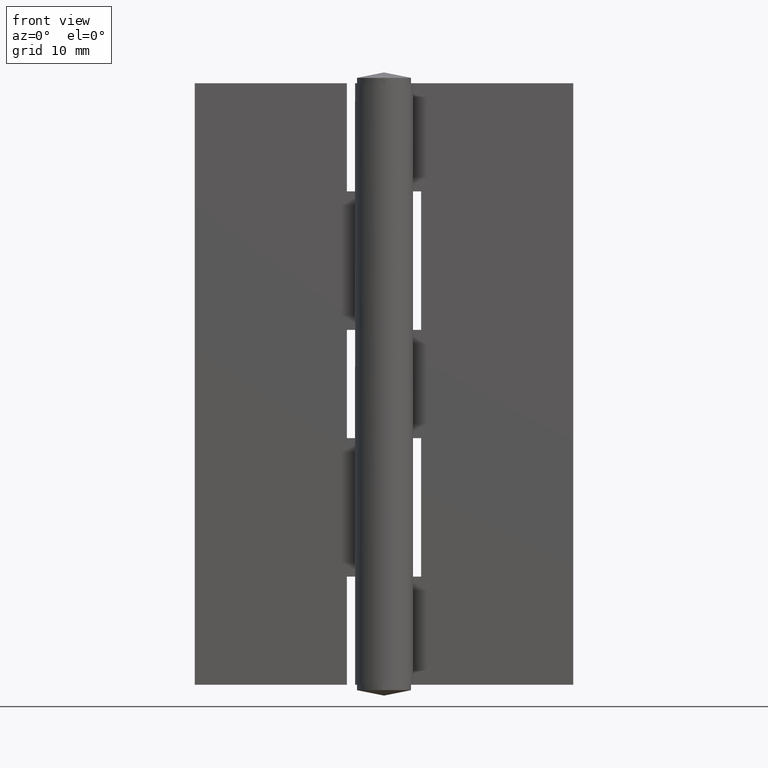
[diagram: clean part render]
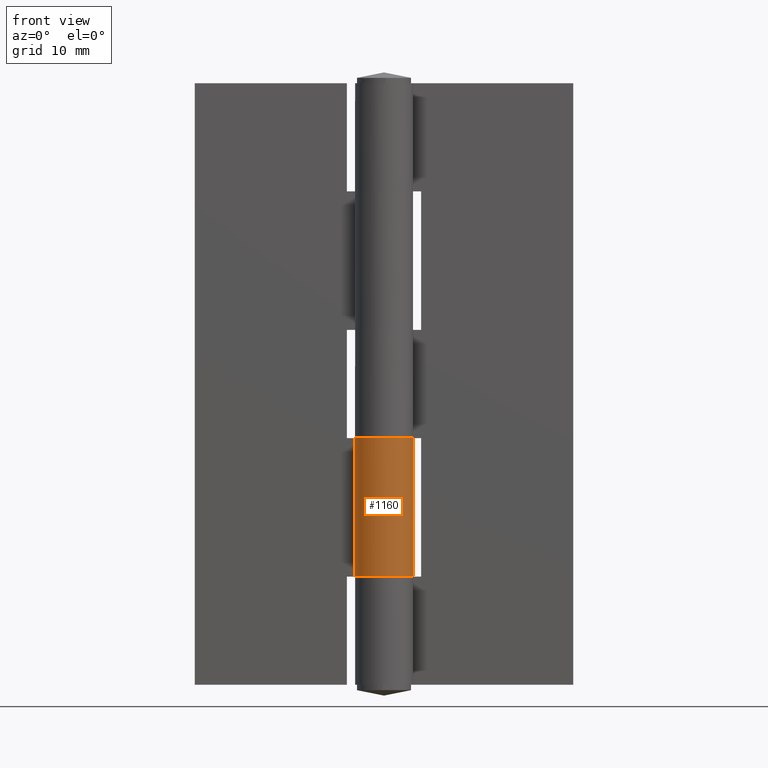
[diagram: same view with one face highlighted and labeled with its STEP entity id]
A machine part, front view. The second image highlights one B-rep face of the part: STEP entity #1160.
In plain terms, the highlighted face is a freeform B-spline surface patch.
Its self-contained STEP definition (entity closure, byte-faithful):
#437=CARTESIAN_POINT('',(0.002932575507883,4.299999000000000,16.0));
#438=VERTEX_POINT('',#437);
#439=CARTESIAN_POINT('',(-3.462297661957860,2.549999000000000,16.0));
#440=VERTEX_POINT('',#439);
#441=CARTESIAN_POINT('',(0.002932575507883,4.299999000000000,16.0));
#442=CARTESIAN_POINT('',(0.481933491687181,4.300013080212727,16.000000000000060));
#443=CARTESIAN_POINT('',(1.200059040545046,4.177845728719395,15.999999999999901));
#444=CARTESIAN_POINT('',(2.009770240784722,3.817724116576090,16.000000000000082));
#445=CARTESIAN_POINT('',(2.607046226951480,3.443843536100312,15.999999999999980));
#446=CARTESIAN_POINT('',(3.160861212709031,2.956948042687175,15.999999999999851));
#447=CARTESIAN_POINT('',(3.643783330239410,2.323168584797108,16.000000000000110));
#448=CARTESIAN_POINT('',(4.045111250741846,1.550382764543653,16.000000000000309));
#449=CARTESIAN_POINT('',(4.290746802694030,0.662960948063668,15.999999999999471));
#450=CARTESIAN_POINT('',(4.323113340937640,-0.420729384003662,16.000000000000199));
#451=CARTESIAN_POINT('',(4.106687007827798,-1.409386471307509,16.000000000000551));
#452=CARTESIAN_POINT('',(3.636378745814959,-2.368889054098237,15.999999999999570));
#453=CARTESIAN_POINT('',(3.078638550019641,-3.043767597170633,16.000000000000139));
#454=CARTESIAN_POINT('',(2.449515975493235,-3.554127620102255,16.000000000000121));
#455=CARTESIAN_POINT('',(1.711076645934413,-3.987364625944747,16.000000000000249));
#456=CARTESIAN_POINT('',(0.829683819228685,-4.260524236631307,15.999999999999980));
#457=CARTESIAN_POINT('',(-0.040031050454243,-4.317516782882353,15.999999999999920));
#458=CARTESIAN_POINT('',(-0.801987783248797,-4.248027822698567,15.999999999999860));
#459=CARTESIAN_POINT('',(-1.484324433030123,-4.060249870643527,16.000000000000231));
#460=CARTESIAN_POINT('',(-2.215196665440546,-3.710745901405451,16.000000000000519));
#461=CARTESIAN_POINT('',(-2.766994543508090,-3.318155866478220,15.999999999998410));
#462=CARTESIAN_POINT('',(-3.297175917094900,-2.787916705460616,16.000000000003158));
#463=CARTESIAN_POINT('',(-3.739260192487009,-2.180009512348315,15.999999999998041));
#464=CARTESIAN_POINT('',(-4.103386489059988,-1.386740610956285,16.000000000000622));
#465=CARTESIAN_POINT('',(-4.318348643137973,-0.432406220462712,15.999999999999799));
#466=CARTESIAN_POINT('',(-4.305682497805897,0.503407646580875,16.000000000000050));
#467=CARTESIAN_POINT('',(-4.056107463339091,1.556181259790487,16.0));
#468=CARTESIAN_POINT('',(-3.728781612544478,2.188567887070498,16.0));
#469=CARTESIAN_POINT('',(-3.462297661957860,2.549999000000000,16.0));
#470=B_SPLINE_CURVE_WITH_KNOTS('',3,(#441,#442,#443,#444,#445,#446,#447,#448,#449,#450,#451,#452,#453,#454,#455,#456,#457,#458,#459,#460,#461,#462,#463,#464,#465,#466,#467,#468,#469),.UNSPECIFIED.,.F.,.U.,(4,1,1,1,1,1,1,1,1,1,1,1,1,1,1,1,1,1,1,1,1,1,1,1,1,1,4),(0.000000511278881,1.436850530364449,2.155317894391565,2.649252435947265,3.547306386515242,4.355558217031408,5.029134985236766,6.151609582738658,7.094588374341475,8.262068314640825,9.160130367321768,10.282728902750589,10.866453134538830,11.584830473116760,12.842118105206810,13.605463042413060,14.189210483685040,15.132186546543860,15.715931242300170,16.613982865399549,17.152819115894381,17.960989465054912,18.859052699926352,19.757127776391901,20.879716277419892,21.643061214648029,22.990119390792589),.UNSPECIFIED.);
#471=EDGE_CURVE('',#438,#440,#470,.T.);
#833=CARTESIAN_POINT('',(-3.462297661957860,2.549999000000000,36.500000000000000));
#834=VERTEX_POINT('',#833);
#840=CARTESIAN_POINT('',(0.002932575507883,4.299999000000000,36.500000000000000));
#841=VERTEX_POINT('',#840);
#842=CARTESIAN_POINT('',(-3.462297661957860,2.549999000000000,36.500000000000000));
#843=CARTESIAN_POINT('',(-3.657627018110305,2.284899268811062,36.500000000000057));
#844=CARTESIAN_POINT('',(-3.919504879294518,1.827219718519073,36.499999999999957));
#845=CARTESIAN_POINT('',(-4.187537252373646,1.062731418899724,36.500000000000050));
#846=CARTESIAN_POINT('',(-4.322548583387612,0.277056198554292,36.499999999999943));
#847=CARTESIAN_POINT('',(-4.288727707561995,-0.595651382584677,36.500000000000227));
#848=CARTESIAN_POINT('',(-4.101061729807102,-1.354545728744831,36.499999999999638));
#849=CARTESIAN_POINT('',(-3.776601082361299,-2.113184071509366,36.500000000000369));
#850=CARTESIAN_POINT('',(-3.326933361717704,-2.774214059125799,36.499999999999687));
#851=CARTESIAN_POINT('',(-2.763184274771844,-3.314779089603031,36.500000000000412));
#852=CARTESIAN_POINT('',(-2.213295301170533,-3.705997984649741,36.499999999999488));
#853=CARTESIAN_POINT('',(-1.488753791088484,-4.071388296414257,36.500000000001322));
#854=CARTESIAN_POINT('',(-0.493587257836817,-4.323111562072257,36.499999999999652));
#855=CARTESIAN_POINT('',(0.488148948299431,-4.304723541025277,36.500000000000220));
#856=CARTESIAN_POINT('',(1.292292692074924,-4.118464824310936,36.500000000000107));
#857=CARTESIAN_POINT('',(2.003691847196520,-3.835303659178275,36.499999999998629));
#858=CARTESIAN_POINT('',(2.662360352360661,-3.411167786310225,36.500000000000597));
#859=CARTESIAN_POINT('',(3.279529484362968,-2.818348920399668,36.499999999999943));
#860=CARTESIAN_POINT('',(3.692114453012839,-2.243837077092418,36.499999999999993));
#861=CARTESIAN_POINT('',(4.041928912712309,-1.530090694034498,36.500000000000050));
#862=CARTESIAN_POINT('',(4.239846887669883,-0.850624143603604,36.499999999999957));
#863=CARTESIAN_POINT('',(4.327324901022120,0.015438418681890,36.500000000000021));
#864=CARTESIAN_POINT('',(4.247977233456975,0.871050904154015,36.500000000000021));
#865=CARTESIAN_POINT('',(3.989883672063958,1.657475873224025,36.499999999999972));
#866=CARTESIAN_POINT('',(3.647859042169718,2.307853349201301,36.500000000000028));
#867=CARTESIAN_POINT('',(3.166290237119560,2.960986134460564,36.499999999999972));
#868=CARTESIAN_POINT('',(2.539899273908068,3.505890937967021,36.500000000000007));
#869=CARTESIAN_POINT('',(1.809759027463983,3.921515618099778,36.500000000000007));
#870=CARTESIAN_POINT('',(1.020595185664558,4.214742679746119,36.500000000000007));
#871=CARTESIAN_POINT('',(0.377117905770133,4.299865395263856,36.499999999999993));
#872=CARTESIAN_POINT('',(0.002932575507883,4.299999000000000,36.500000000000000));
#873=B_SPLINE_CURVE_WITH_KNOTS('',3,(#842,#843,#844,#845,#846,#847,#848,#849,#850,#851,#852,#853,#854,#855,#856,#857,#858,#859,#860,#861,#862,#863,#864,#865,#866,#867,#868,#869,#870,#871,#872),.UNSPECIFIED.,.F.,.U.,(4,1,1,1,1,1,1,1,1,1,1,1,1,1,1,1,1,1,1,1,1,1,1,1,1,1,1,1,4),(0.000000511276021,0.987848409257019,1.571578985394879,2.424731597156331,3.367702390522059,4.175965267023369,4.759681886680003,5.837300742256222,6.555731024843581,7.094588374339317,7.857933311534834,8.980521812564440,10.148001752916169,10.776660123922190,11.450211711831640,12.437991533930211,13.111522969049190,14.009598045515450,14.548439105267020,15.491397473086479,16.120063359505121,17.152819115893870,18.050790486596910,18.589647836071329,19.352992773288630,20.475581274317200,21.059325585543359,21.867593090378868,22.990119390792628),.UNSPECIFIED.);
#874=EDGE_CURVE('',#834,#841,#873,.T.);
#1120=CARTESIAN_POINT('',(0.002932575507883,4.299999000000000,36.500000000000000));
#1121=CARTESIAN_POINT('',(0.002932575507883,4.299999000000000,16.0));
#1122=QUASI_UNIFORM_CURVE('',1,(#1120,#1121),.UNSPECIFIED.,.F.,.U.);
#1123=EDGE_CURVE('',#841,#438,#1122,.T.);
#1128=CARTESIAN_POINT('',(-3.347772927603802,2.698595268876544,37.012500000000010));
#1129=CARTESIAN_POINT('',(-3.347772927603802,2.698595268876544,15.474687500000000));
#1130=CARTESIAN_POINT('',(-6.801817360678165,-1.586358676292502,37.012500000000010));
#1131=CARTESIAN_POINT('',(-6.801817360678165,-1.586358676292502,15.474687500000002));
#1132=CARTESIAN_POINT('',(-1.808535883656340,-3.901179047099385,37.012500000000010));
#1133=CARTESIAN_POINT('',(-1.808535883656340,-3.901179047099385,15.474687500000000));
#1134=CARTESIAN_POINT('',(3.184745593365484,-6.215999417906269,37.012500000000010));
#1135=CARTESIAN_POINT('',(3.184745593365484,-6.215999417906269,15.474687500000002));
#1136=CARTESIAN_POINT('',(4.222821786072194,-0.811034008580571,37.012500000000010));
#1137=CARTESIAN_POINT('',(4.222821786072194,-0.811034008580571,15.474687500000000));
#1138=CARTESIAN_POINT('',(5.260897978778905,4.593931400745126,37.012500000000010));
#1139=CARTESIAN_POINT('',(5.260897978778905,4.593931400745126,15.474687500000002));
#1140=CARTESIAN_POINT('',(-0.234650218875904,4.293592816602602,37.012500000000010));
#1141=CARTESIAN_POINT('',(-0.234650218875904,4.293592816602602,15.474687500000000));
#1149=(BOUNDED_SURFACE()B_SPLINE_SURFACE(1,2,((#1128,#1130,#1132,#1134,#1136,#1138,#1140),(#1129,#1131,#1133,#1135,#1137,#1139,#1141)),.UNSPECIFIED.,.F.,.F.,.U.)B_SPLINE_SURFACE_WITH_KNOTS((2,2),(3,2,2,3),(0.0,21.537812500000008),(0.0,8.389000523332811,16.778001046665619,25.167001569998430),.UNSPECIFIED.)GEOMETRIC_REPRESENTATION_ITEM()RATIONAL_B_SPLINE_SURFACE(((1.0,0.615661475325658,1.0,0.615661475325658,1.0,0.615661475325658,1.0),(1.0,0.615661475325658,1.0,0.615661475325658,1.0,0.615661475325658,1.0)))REPRESENTATION_ITEM('')SURFACE());
#1150=ORIENTED_EDGE('',*,*,#471,.F.);
#1151=ORIENTED_EDGE('',*,*,#1123,.F.);
#1152=ORIENTED_EDGE('',*,*,#874,.F.);
#1153=CARTESIAN_POINT('',(-3.462297661957860,2.549999000000000,36.500000000000000));
#1154=CARTESIAN_POINT('',(-3.462297661957860,2.549999000000000,16.0));
#1155=QUASI_UNIFORM_CURVE('',1,(#1153,#1154),.UNSPECIFIED.,.F.,.U.);
#1156=EDGE_CURVE('',#834,#440,#1155,.T.);
#1157=ORIENTED_EDGE('',*,*,#1156,.T.);
#1158=EDGE_LOOP('',(#1150,#1151,#1152,#1157));
#1159=FACE_OUTER_BOUND('',#1158,.T.);
#1160=ADVANCED_FACE('',(#1159),#1149,.T.);